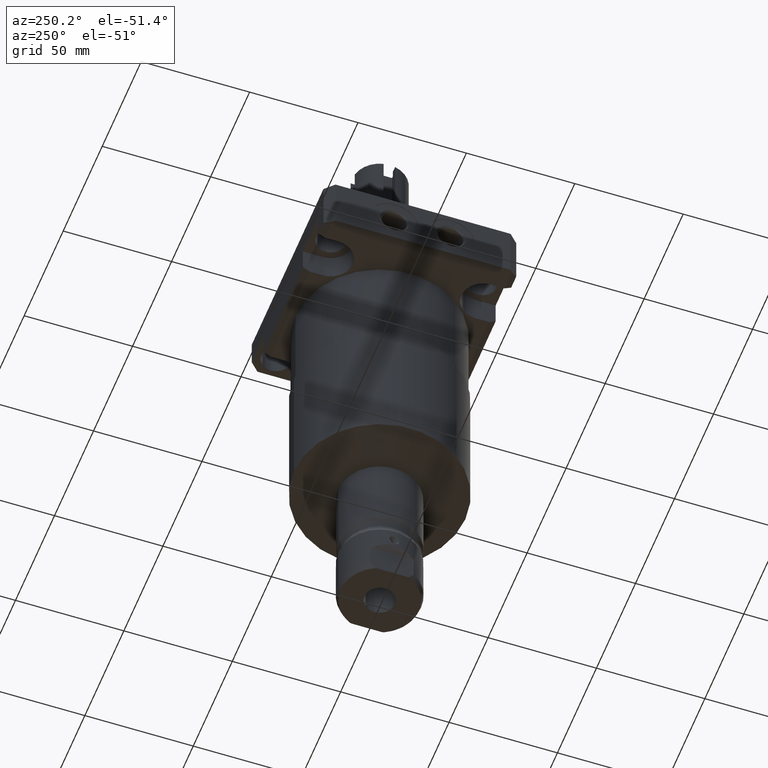
[diagram: clean part render]
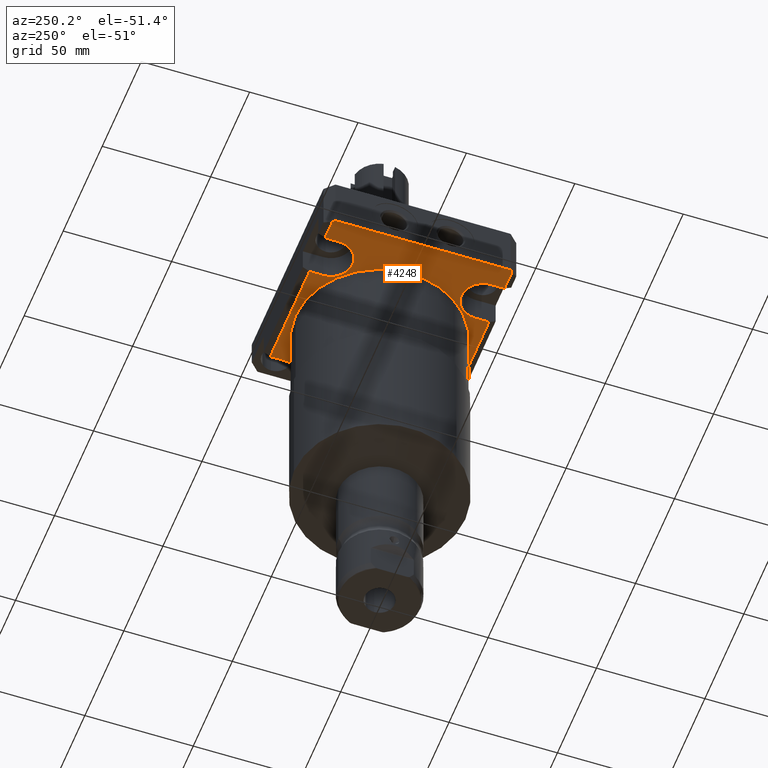
[diagram: same view with one face highlighted and labeled with its STEP entity id]
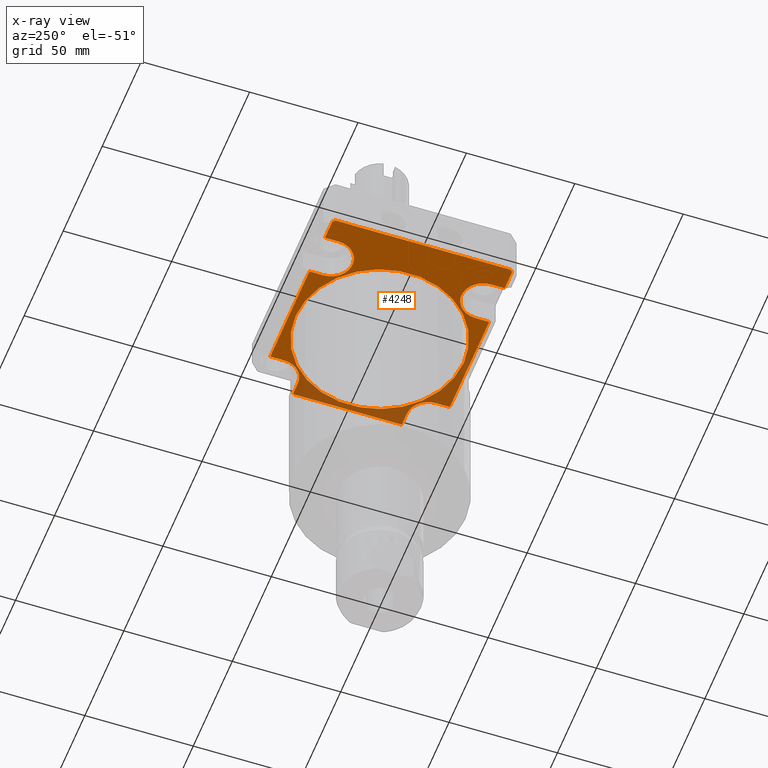
[diagram: x-ray of the same camera — body ghosted, the highlighted face saturated]
A machine part, auxiliary view. The second image highlights one B-rep face of the part: STEP entity #4248.
The next image is the same camera in x-ray: the body ghosted, the highlighted face saturated — about 20% of this face is hidden behind the body in this view.
In plain terms, the highlighted planar face has unit normal (0, 0, 1).
Its self-contained STEP definition (entity closure, byte-faithful):
#937=CARTESIAN_POINT('',(0.E0,0.E0,0.E0));
#938=DIRECTION('',(0.E0,0.E0,-1.E0));
#939=DIRECTION('',(0.E0,1.E0,0.E0));
#940=AXIS2_PLACEMENT_3D('',#937,#938,#939);
#942=CARTESIAN_POINT('',(0.E0,0.E0,0.E0));
#943=DIRECTION('',(0.E0,0.E0,-1.E0));
#944=DIRECTION('',(0.E0,-1.E0,0.E0));
#945=AXIS2_PLACEMENT_3D('',#942,#943,#944);
#947=DIRECTION('',(1.E0,0.E0,0.E0));
#948=VECTOR('',#947,9.5251E0);
#949=CARTESIAN_POINT('',(-5.45086E1,-4.14274E1,0.E0));
#950=LINE('',#949,#948);
#951=DIRECTION('',(0.E0,-1.E0,0.E0));
#952=VECTOR('',#951,6.3754E0);
#953=CARTESIAN_POINT('',(-4.49835E1,-3.5052E1,0.E0));
#954=LINE('',#953,#952);
#955=CARTESIAN_POINT('',(-3.5052E1,-3.5052E1,0.E0));
#956=DIRECTION('',(0.E0,0.E0,1.E0));
#957=DIRECTION('',(1.E0,0.E0,0.E0));
#958=AXIS2_PLACEMENT_3D('',#955,#956,#957);
#960=DIRECTION('',(0.E0,-1.E0,0.E0));
#961=VECTOR('',#960,6.3754E0);
#962=CARTESIAN_POINT('',(-2.51205E1,-3.5052E1,0.E0));
#963=LINE('',#962,#961);
#964=DIRECTION('',(1.E0,0.E0,0.E0));
#965=VECTOR('',#964,5.0241E1);
#966=CARTESIAN_POINT('',(-2.51205E1,-4.14274E1,0.E0));
#967=LINE('',#966,#965);
#968=DIRECTION('',(0.E0,-1.E0,0.E0));
#969=VECTOR('',#968,6.3754E0);
#970=CARTESIAN_POINT('',(2.51205E1,-3.5052E1,0.E0));
#971=LINE('',#970,#969);
#972=CARTESIAN_POINT('',(3.5052E1,-3.5052E1,0.E0));
#973=DIRECTION('',(0.E0,0.E0,1.E0));
#974=DIRECTION('',(0.E0,1.E0,0.E0));
#975=AXIS2_PLACEMENT_3D('',#972,#973,#974);
#977=DIRECTION('',(1.E0,0.E0,0.E0));
#978=VECTOR('',#977,6.3754E0);
#979=CARTESIAN_POINT('',(3.5052E1,-2.51205E1,0.E0));
#980=LINE('',#979,#978);
#981=DIRECTION('',(0.E0,1.E0,0.E0));
#982=VECTOR('',#981,5.0241E1);
#983=CARTESIAN_POINT('',(4.14274E1,-2.51205E1,0.E0));
#984=LINE('',#983,#982);
#985=DIRECTION('',(1.E0,0.E0,0.E0));
#986=VECTOR('',#985,6.3754E0);
#987=CARTESIAN_POINT('',(3.5052E1,2.51205E1,0.E0));
#988=LINE('',#987,#986);
#989=CARTESIAN_POINT('',(3.5052E1,3.5052E1,0.E0));
#990=DIRECTION('',(0.E0,0.E0,1.E0));
#991=DIRECTION('',(-1.E0,0.E0,0.E0));
#992=AXIS2_PLACEMENT_3D('',#989,#990,#991);
#994=DIRECTION('',(0.E0,1.E0,0.E0));
#995=VECTOR('',#994,6.3754E0);
#996=CARTESIAN_POINT('',(2.51205E1,3.5052E1,0.E0));
#997=LINE('',#996,#995);
#998=DIRECTION('',(1.E0,0.E0,0.E0));
#999=VECTOR('',#998,5.0241E1);
#1000=CARTESIAN_POINT('',(-2.51205E1,4.14274E1,0.E0));
#1001=LINE('',#1000,#999);
#1002=DIRECTION('',(0.E0,1.E0,0.E0));
#1003=VECTOR('',#1002,6.3754E0);
#1004=CARTESIAN_POINT('',(-2.51205E1,3.5052E1,0.E0));
#1005=LINE('',#1004,#1003);
#1006=CARTESIAN_POINT('',(-3.5052E1,3.5052E1,0.E0));
#1007=DIRECTION('',(0.E0,0.E0,1.E0));
#1008=DIRECTION('',(-1.E0,0.E0,0.E0));
#1009=AXIS2_PLACEMENT_3D('',#1006,#1007,#1008);
#1011=DIRECTION('',(0.E0,1.E0,0.E0));
#1012=VECTOR('',#1011,6.3754E0);
#1013=CARTESIAN_POINT('',(-4.49835E1,3.5052E1,0.E0));
#1014=LINE('',#1013,#1012);
#1015=DIRECTION('',(1.E0,0.E0,0.E0));
#1016=VECTOR('',#1015,9.5251E0);
#1017=CARTESIAN_POINT('',(-5.45086E1,4.14274E1,0.E0));
#1018=LINE('',#1017,#1016);
#1019=DIRECTION('',(-7.071067811865E-1,-7.071067811865E-1,0.E0));
#1020=VECTOR('',#1019,1.472762003855E0);
#1021=CARTESIAN_POINT('',(-5.45086E1,4.14274E1,0.E0));
#1022=LINE('',#1021,#1020);
#1023=DIRECTION('',(0.E0,-1.E0,0.E0));
#1024=VECTOR('',#1023,8.0772E1);
#1025=CARTESIAN_POINT('',(-5.555E1,4.0386E1,0.E0));
#1026=LINE('',#1025,#1024);
#1027=DIRECTION('',(7.071067811865E-1,-7.071067811865E-1,0.E0));
#1028=VECTOR('',#1027,1.472762003855E0);
#1029=CARTESIAN_POINT('',(-5.555E1,-4.0386E1,0.E0));
#1030=LINE('',#1029,#1028);
#2669=CARTESIAN_POINT('',(-5.555E1,4.0386E1,0.E0));
#2670=CARTESIAN_POINT('',(-5.555E1,-4.0386E1,0.E0));
#2671=VERTEX_POINT('',#2669);
#2672=VERTEX_POINT('',#2670);
#2689=CARTESIAN_POINT('',(-5.45086E1,-4.14274E1,0.E0));
#2690=CARTESIAN_POINT('',(-4.49835E1,-4.14274E1,0.E0));
#2691=VERTEX_POINT('',#2689);
#2692=VERTEX_POINT('',#2690);
#2693=CARTESIAN_POINT('',(-5.45086E1,4.14274E1,0.E0));
#2694=CARTESIAN_POINT('',(-4.49835E1,4.14274E1,0.E0));
#2695=VERTEX_POINT('',#2693);
#2696=VERTEX_POINT('',#2694);
#2705=CARTESIAN_POINT('',(4.14274E1,-2.51205E1,0.E0));
#2706=CARTESIAN_POINT('',(4.14274E1,2.51205E1,0.E0));
#2707=VERTEX_POINT('',#2705);
#2708=VERTEX_POINT('',#2706);
#2733=CARTESIAN_POINT('',(3.5052E1,-2.51205E1,0.E0));
#2734=CARTESIAN_POINT('',(2.51205E1,-3.5052E1,0.E0));
#2735=VERTEX_POINT('',#2733);
#2736=VERTEX_POINT('',#2734);
#2737=CARTESIAN_POINT('',(-2.51205E1,-3.5052E1,0.E0));
#2738=CARTESIAN_POINT('',(-4.49835E1,-3.5052E1,0.E0));
#2739=VERTEX_POINT('',#2737);
#2740=VERTEX_POINT('',#2738);
#2741=CARTESIAN_POINT('',(-4.49835E1,3.5052E1,0.E0));
#2742=CARTESIAN_POINT('',(-2.51205E1,3.5052E1,0.E0));
#2743=VERTEX_POINT('',#2741);
#2744=VERTEX_POINT('',#2742);
#2745=CARTESIAN_POINT('',(2.51205E1,3.5052E1,0.E0));
#2746=CARTESIAN_POINT('',(3.5052E1,2.51205E1,0.E0));
#2747=VERTEX_POINT('',#2745);
#2748=VERTEX_POINT('',#2746);
#2835=CARTESIAN_POINT('',(-2.51205E1,-4.14274E1,0.E0));
#2836=CARTESIAN_POINT('',(2.51205E1,-4.14274E1,0.E0));
#2837=VERTEX_POINT('',#2835);
#2838=VERTEX_POINT('',#2836);
#2839=CARTESIAN_POINT('',(-2.51205E1,4.14274E1,0.E0));
#2840=CARTESIAN_POINT('',(2.51205E1,4.14274E1,0.E0));
#2841=VERTEX_POINT('',#2839);
#2842=VERTEX_POINT('',#2840);
#2935=CARTESIAN_POINT('',(0.E0,3.8786E1,0.E0));
#2936=CARTESIAN_POINT('',(0.E0,-3.8786E1,0.E0));
#2937=VERTEX_POINT('',#2935);
#2938=VERTEX_POINT('',#2936);
#4198=CARTESIAN_POINT('',(0.E0,0.E0,0.E0));
#4199=DIRECTION('',(0.E0,0.E0,1.E0));
#4200=DIRECTION('',(1.E0,0.E0,0.E0));
#4201=AXIS2_PLACEMENT_3D('',#4198,#4199,#4200);
#4202=PLANE('',#4201);
#4203=ORIENTED_EDGE('',*,*,#4163,.T.);
#4205=ORIENTED_EDGE('',*,*,#4204,.F.);
#4207=ORIENTED_EDGE('',*,*,#4206,.F.);
#4209=ORIENTED_EDGE('',*,*,#4208,.T.);
#4210=ORIENTED_EDGE('',*,*,#4178,.T.);
#4212=ORIENTED_EDGE('',*,*,#4211,.F.);
#4214=ORIENTED_EDGE('',*,*,#4213,.F.);
#4216=ORIENTED_EDGE('',*,*,#4215,.T.);
#4218=ORIENTED_EDGE('',*,*,#4217,.T.);
#4220=ORIENTED_EDGE('',*,*,#4219,.F.);
#4222=ORIENTED_EDGE('',*,*,#4221,.F.);
#4224=ORIENTED_EDGE('',*,*,#4223,.T.);
#4226=ORIENTED_EDGE('',*,*,#4225,.F.);
#4228=ORIENTED_EDGE('',*,*,#4227,.F.);
#4230=ORIENTED_EDGE('',*,*,#4229,.F.);
#4232=ORIENTED_EDGE('',*,*,#4231,.T.);
#4234=ORIENTED_EDGE('',*,*,#4233,.F.);
#4236=ORIENTED_EDGE('',*,*,#4235,.T.);
#4238=ORIENTED_EDGE('',*,*,#4237,.T.);
#4239=ORIENTED_EDGE('',*,*,#4189,.T.);
#4240=EDGE_LOOP('',(#4203,#4205,#4207,#4209,#4210,#4212,#4214,#4216,#4218,#4220,
#4222,#4224,#4226,#4228,#4230,#4232,#4234,#4236,#4238,#4239));
#4241=FACE_OUTER_BOUND('',#4240,.F.);
#4243=ORIENTED_EDGE('',*,*,#4242,.T.);
#4245=ORIENTED_EDGE('',*,*,#4244,.T.);
#4246=EDGE_LOOP('',(#4243,#4245));
#4247=FACE_BOUND('',#4246,.F.);
#941=CIRCLE('',#940,3.8786E1);
#946=CIRCLE('',#945,3.8786E1);
#959=CIRCLE('',#958,9.9315E0);
#976=CIRCLE('',#975,9.9315E0);
#993=CIRCLE('',#992,9.9315E0);
#1010=CIRCLE('',#1009,9.9315E0);
#4163=EDGE_CURVE('',#2691,#2692,#950,.T.);
#4178=EDGE_CURVE('',#2837,#2838,#967,.T.);
#4189=EDGE_CURVE('',#2672,#2691,#1030,.T.);
#4204=EDGE_CURVE('',#2740,#2692,#954,.T.);
#4206=EDGE_CURVE('',#2739,#2740,#959,.T.);
#4208=EDGE_CURVE('',#2739,#2837,#963,.T.);
#4211=EDGE_CURVE('',#2736,#2838,#971,.T.);
#4213=EDGE_CURVE('',#2735,#2736,#976,.T.);
#4215=EDGE_CURVE('',#2735,#2707,#980,.T.);
#4217=EDGE_CURVE('',#2707,#2708,#984,.T.);
#4219=EDGE_CURVE('',#2748,#2708,#988,.T.);
#4221=EDGE_CURVE('',#2747,#2748,#993,.T.);
#4223=EDGE_CURVE('',#2747,#2842,#997,.T.);
#4225=EDGE_CURVE('',#2841,#2842,#1001,.T.);
#4227=EDGE_CURVE('',#2744,#2841,#1005,.T.);
#4229=EDGE_CURVE('',#2743,#2744,#1010,.T.);
#4231=EDGE_CURVE('',#2743,#2696,#1014,.T.);
#4233=EDGE_CURVE('',#2695,#2696,#1018,.T.);
#4235=EDGE_CURVE('',#2695,#2671,#1022,.T.);
#4237=EDGE_CURVE('',#2671,#2672,#1026,.T.);
#4242=EDGE_CURVE('',#2937,#2938,#941,.T.);
#4244=EDGE_CURVE('',#2938,#2937,#946,.T.);
#4248=ADVANCED_FACE('',(#4241,#4247),#4202,.F.);